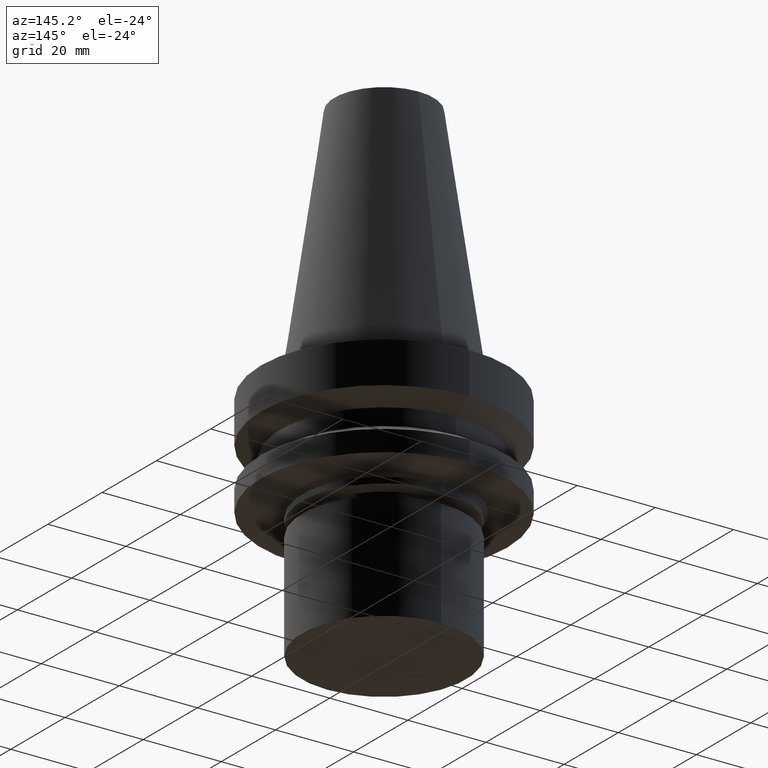
[diagram: clean part render]
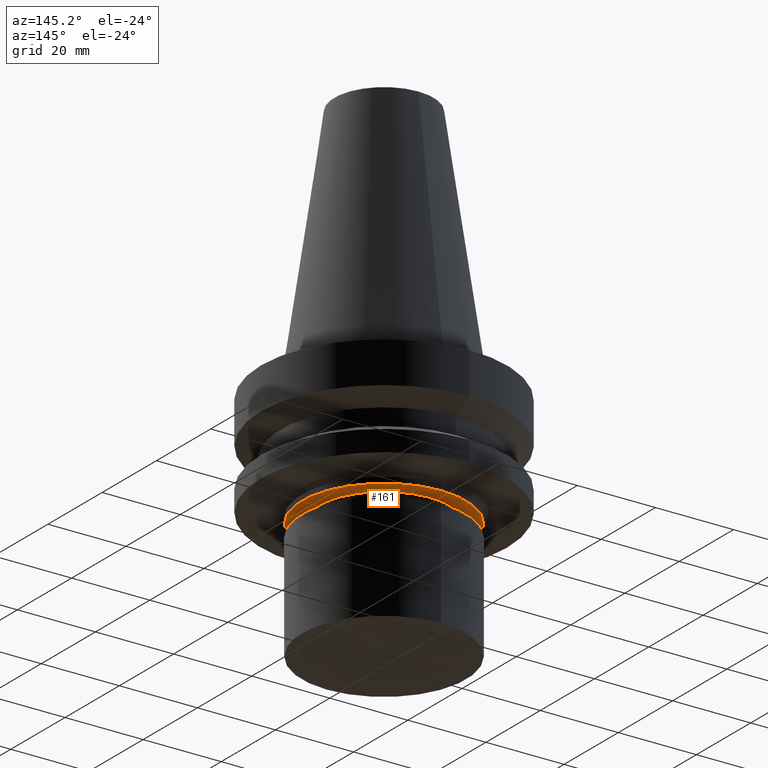
[diagram: same view with one face highlighted and labeled with its STEP entity id]
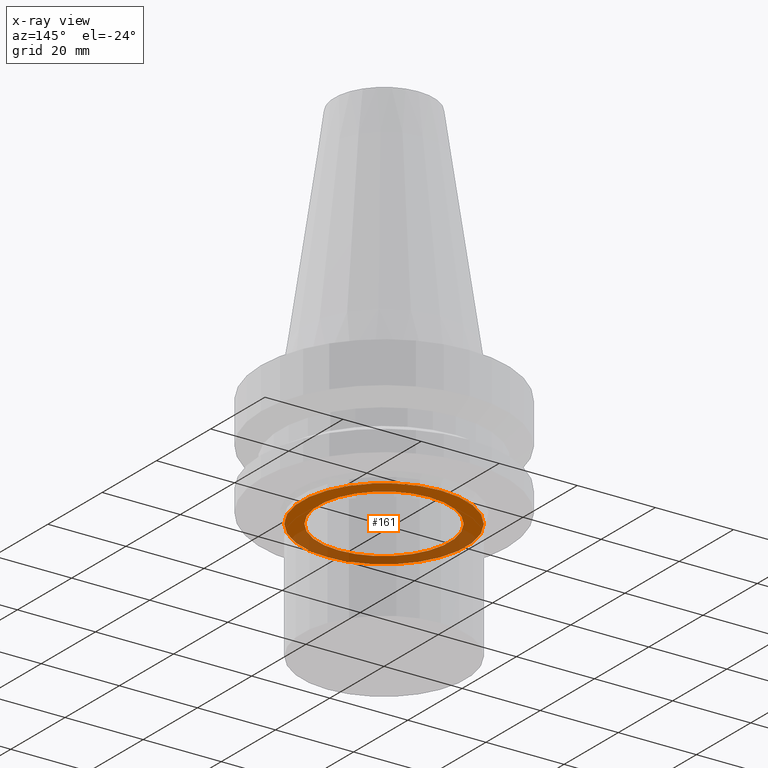
[diagram: x-ray of the same camera — body ghosted, the highlighted face saturated]
A machine part, auxiliary view. The second image highlights one B-rep face of the part: STEP entity #161.
The next image is the same camera in x-ray: the body ghosted, the highlighted face saturated — about 41% of this face is hidden behind the body in this view.
In plain terms, the highlighted planar face has unit normal (0, -0, -1).
Its self-contained STEP definition (entity closure, byte-faithful):
#86=EDGE_CURVE('Unnamed[1]',#216,#216,#217,.T.);
#155=EDGE_CURVE('Unnamed[1]',#324,#324,#325,.T.);
#161=ADVANCED_FACE('Unnamed[1]',(#333,#334),#335,.T.);
#216=VERTEX_POINT('',#395);
#217=CIRCLE('',#396,21.0000000000001);
#324=VERTEX_POINT('',#531);
#325=CIRCLE('',#532,16.7499999999907);
#333=FACE_BOUND('',#542,.T.);
#334=FACE_OUTER_BOUND('',#543,.T.);
#335=PLANE('',#544);
#395=CARTESIAN_POINT('',(1.80635402874234E-015,21.0000000000002,-29.4999999999999));
#396=AXIS2_PLACEMENT_3D('',#595,#596,#597);
#531=CARTESIAN_POINT('',(1.80635402874229E-015,16.7499999999907,-29.4999999999991));
#532=AXIS2_PLACEMENT_3D('',#716,#717,#718);
#542=EDGE_LOOP('',(#726));
#543=EDGE_LOOP('',(#727));
#544=AXIS2_PLACEMENT_3D('',#728,#729,#730);
#595=CARTESIAN_POINT('',(1.80635402874234E-015,2.56957837916424E-014,-29.4999999999999));
#596=DIRECTION('',(6.12323399573677E-017,-5.36731610657134E-016,-1.0));
#597=DIRECTION('',(2.80381797188541E-032,1.0,-5.36731610657134E-016));
#716=CARTESIAN_POINT('',(1.80635402874229E-015,2.56957837916428E-014,-29.4999999999991));
#717=DIRECTION('',(6.12323399573677E-017,-5.36731610657134E-016,-1.0));
#718=DIRECTION('',(2.80381797188541E-032,1.0,-5.36731610657134E-016));
#726=ORIENTED_EDGE('',*,*,#155,.F.);
#727=ORIENTED_EDGE('',*,*,#86,.T.);
#728=CARTESIAN_POINT('',(1.80635402874232E-015,18.8749999999954,-29.4999999999995));
#729=DIRECTION('',(6.12323399573677E-017,-1.71243724532436E-013,-1.0));
#730=DIRECTION('',(1.04808268034051E-029,1.0,-1.71243724532436E-013));